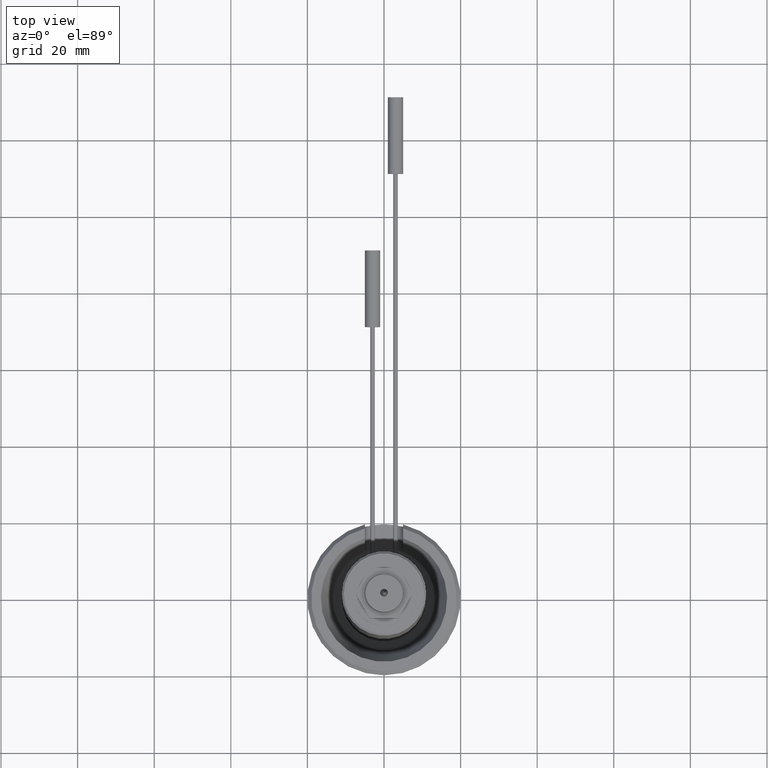
[diagram: clean part render]
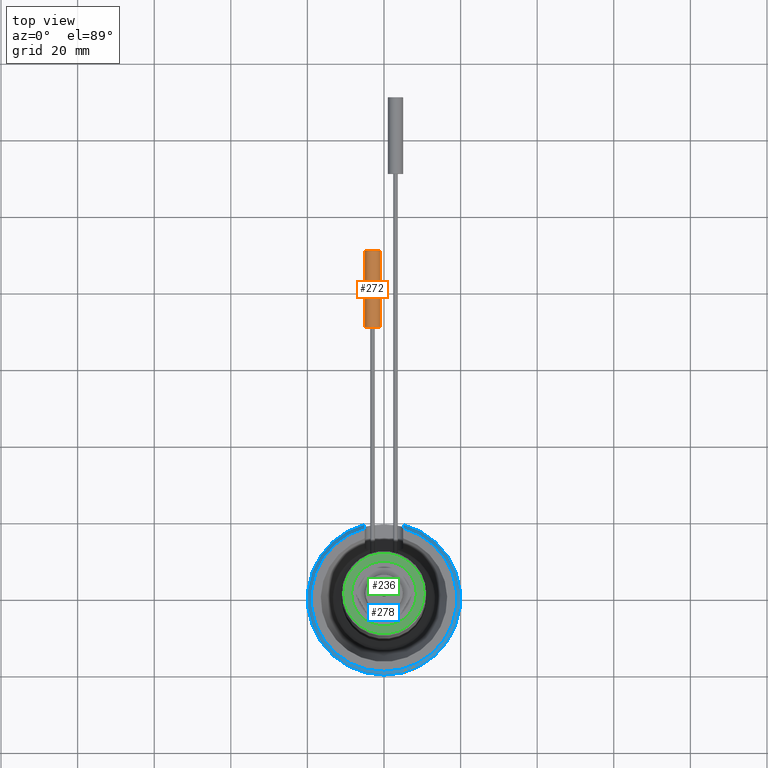
[diagram: same view with three faces highlighted in distinct colors, each labeled with its STEP entity id]
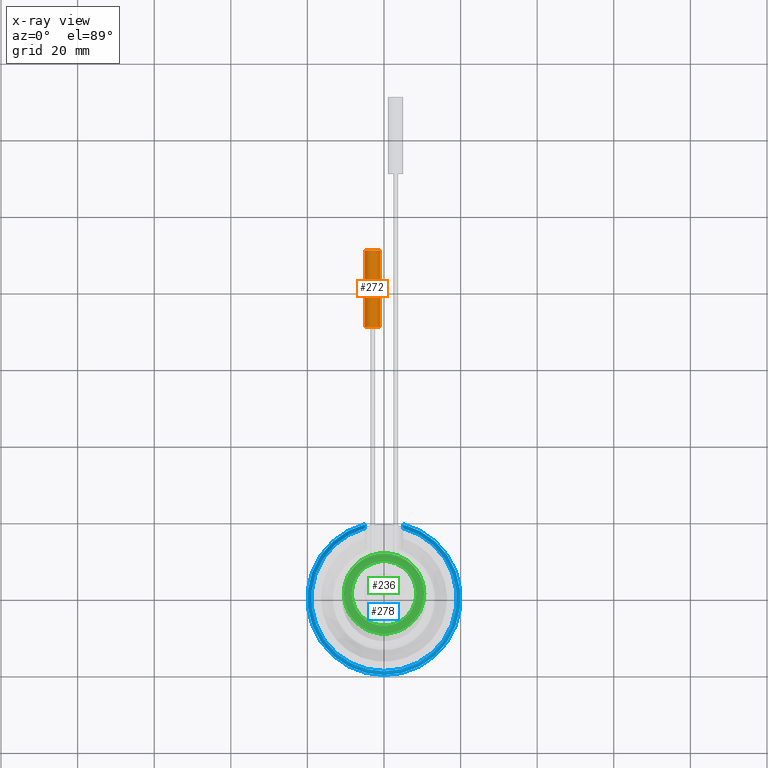
[diagram: x-ray of the same camera — body ghosted, the three highlighted faces saturated]
A machine part, top view with three faces highlighted in distinct colors.
The next image is the same camera in x-ray (body ghosted, the three faces saturated) — at least one of them is partly hidden behind the body in this view.
Their STEP definitions:

[orange] entity #272 — the highlighted cylindrical surface (bore or boss wall) has radius 2 mm, axis along (0, -1, 0).
#52=CYLINDRICAL_SURFACE('',#1222,2.);
#272=ADVANCED_FACE('',(#393,#394),#52,.T.);
#393=FACE_BOUND('',#484,.T.);
#394=FACE_BOUND('',#485,.T.);
#484=EDGE_LOOP('',(#714));
#485=EDGE_LOOP('',(#715));
#714=ORIENTED_EDGE('',*,*,#1039,.F.);
#715=ORIENTED_EDGE('',*,*,#1040,.T.);
#899=VERTEX_POINT('',#2240);
#900=VERTEX_POINT('',#2242);
#1039=EDGE_CURVE('',#899,#899,#1106,.T.);
#1040=EDGE_CURVE('',#900,#900,#1107,.T.);
#1106=CIRCLE('',#1220,2.);
#1107=CIRCLE('',#1221,2.);
#1220=AXIS2_PLACEMENT_3D('',#2239,#1515,#1516);
#1221=AXIS2_PLACEMENT_3D('',#2241,#1517,#1518);
#1222=AXIS2_PLACEMENT_3D('',#2243,#1519,#1520);
#1515=DIRECTION('',(0.,1.,0.));
#1516=DIRECTION('',(1.,0.,0.));
#1517=DIRECTION('',(0.,1.,0.));
#1518=DIRECTION('',(1.,0.,0.));
#1519=DIRECTION('',(0.,-1.,0.));
#1520=DIRECTION('',(0.,0.,-0.999999999999999));
#2239=CARTESIAN_POINT('',(-3.,91.,18.5));
#2240=CARTESIAN_POINT('',(-0.999999999999999,91.,18.5));
#2241=CARTESIAN_POINT('',(-3.,71.,18.5));
#2242=CARTESIAN_POINT('',(-0.999999999999999,71.,18.5));
#2243=CARTESIAN_POINT('',(-3.,91.,18.5));

[blue] entity #278 — the highlighted conical surface has half-angle 45 deg.
#208=FACE_OUTER_BOUND('',#494,.T.);
#278=ADVANCED_FACE('',(#208),#304,.T.);
#304=CONICAL_SURFACE('',#1230,19.,44.9999999999999);
#339=B_SPLINE_CURVE_WITH_KNOTS('',3,(#2218,#2219,#2220,#2221),
 .UNSPECIFIED.,.F.,.F.,(4,4),(0.,1.),.UNSPECIFIED.);
#340=B_SPLINE_CURVE_WITH_KNOTS('',3,(#2224,#2225,#2226,#2227),
 .UNSPECIFIED.,.F.,.F.,(4,4),(0.,1.),.UNSPECIFIED.);
#494=EDGE_LOOP('',(#724,#725,#726,#727));
#724=ORIENTED_EDGE('',*,*,#1034,.F.);
#725=ORIENTED_EDGE('',*,*,#1028,.F.);
#726=ORIENTED_EDGE('',*,*,#1032,.F.);
#727=ORIENTED_EDGE('',*,*,#1036,.F.);
#893=VERTEX_POINT('',#2210);
#894=VERTEX_POINT('',#2212);
#895=VERTEX_POINT('',#2217);
#896=VERTEX_POINT('',#2228);
#1028=EDGE_CURVE('',#893,#894,#1102,.T.);
#1032=EDGE_CURVE('',#895,#893,#339,.T.);
#1034=EDGE_CURVE('',#894,#896,#340,.T.);
#1036=EDGE_CURVE('',#896,#895,#1103,.T.);
#1102=CIRCLE('',#1210,20.);
#1103=CIRCLE('',#1214,19.);
#1210=AXIS2_PLACEMENT_3D('',#2211,#1490,#1491);
#1214=AXIS2_PLACEMENT_3D('',#2231,#1503,#1504);
#1230=AXIS2_PLACEMENT_3D('',#2253,#1535,#1536);
#1490=DIRECTION('',(0.,0.,-1.));
#1491=DIRECTION('',(-1.,0.,0.));
#1503=DIRECTION('',(0.,0.,1.));
#1504=DIRECTION('',(-1.,0.,0.));
#1535=DIRECTION('',(0.,0.,-1.));
#1536=DIRECTION('',(-1.,0.,0.));
#2210=CARTESIAN_POINT('',(5.,19.3649167310371,24.));
#2211=CARTESIAN_POINT('',(0.,0.,24.));
#2212=CARTESIAN_POINT('',(-5.,19.3649167310371,24.));
#2217=CARTESIAN_POINT('',(5.,18.3303027798234,25.));
#2218=CARTESIAN_POINT('',(5.,18.3303027798234,25.));
#2219=CARTESIAN_POINT('',(5.,18.6754829325216,24.6669864888135));
#2220=CARTESIAN_POINT('',(5.,19.0203385698962,24.3336363698914));
#2221=CARTESIAN_POINT('',(5.,19.3649167310371,24.));
#2224=CARTESIAN_POINT('',(-5.,19.3649167310371,24.));
#2225=CARTESIAN_POINT('',(-5.,19.0203385698962,24.3336363698914));
#2226=CARTESIAN_POINT('',(-5.,18.6754829325216,24.6669864888135));
#2227=CARTESIAN_POINT('',(-5.,18.3303027798234,25.));
#2228=CARTESIAN_POINT('',(-5.,18.3303027798234,25.));
#2231=CARTESIAN_POINT('',(0.,0.,25.));
#2253=CARTESIAN_POINT('',(0.,0.,25.));

[green] entity #236 — the highlighted planar face has unit normal (0, 0, -1).
#60=PLANE('',#1145);
#236=ADVANCED_FACE('',(#349,#350),#60,.F.);
#349=FACE_BOUND('',#425,.T.);
#350=FACE_BOUND('',#426,.T.);
#425=EDGE_LOOP('',(#575));
#426=EDGE_LOOP('',(#576));
#575=ORIENTED_EDGE('',*,*,#951,.T.);
#576=ORIENTED_EDGE('',*,*,#952,.F.);
#839=VERTEX_POINT('',#1921);
#840=VERTEX_POINT('',#1923);
#951=EDGE_CURVE('',#839,#839,#1064,.T.);
#952=EDGE_CURVE('',#840,#840,#1065,.T.);
#1064=CIRCLE('',#1143,10.5);
#1065=CIRCLE('',#1144,8.45000000000002);
#1143=AXIS2_PLACEMENT_3D('',#1920,#1333,#1334);
#1144=AXIS2_PLACEMENT_3D('',#1922,#1335,#1336);
#1145=AXIS2_PLACEMENT_3D('',#1924,#1337,#1338);
#1333=DIRECTION('',(0.,0.,1.));
#1334=DIRECTION('',(-1.,0.,0.));
#1335=DIRECTION('',(0.,0.,1.));
#1336=DIRECTION('',(1.,0.,0.));
#1337=DIRECTION('',(0.,0.,-1.));
#1338=DIRECTION('',(-1.,0.,0.));
#1920=CARTESIAN_POINT('',(0.,0.,99.5));
#1921=CARTESIAN_POINT('',(-10.5,0.,99.5));
#1922=CARTESIAN_POINT('',(0.,0.,99.5));
#1923=CARTESIAN_POINT('',(8.45000000000002,0.,99.5));
#1924=CARTESIAN_POINT('',(-11.,0.,99.5));